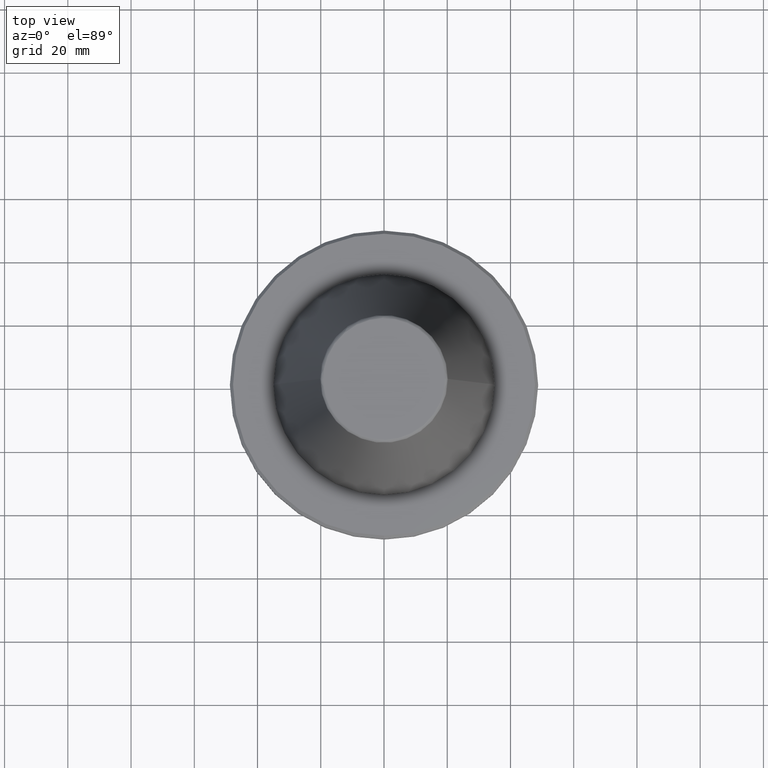
[diagram: clean part render]
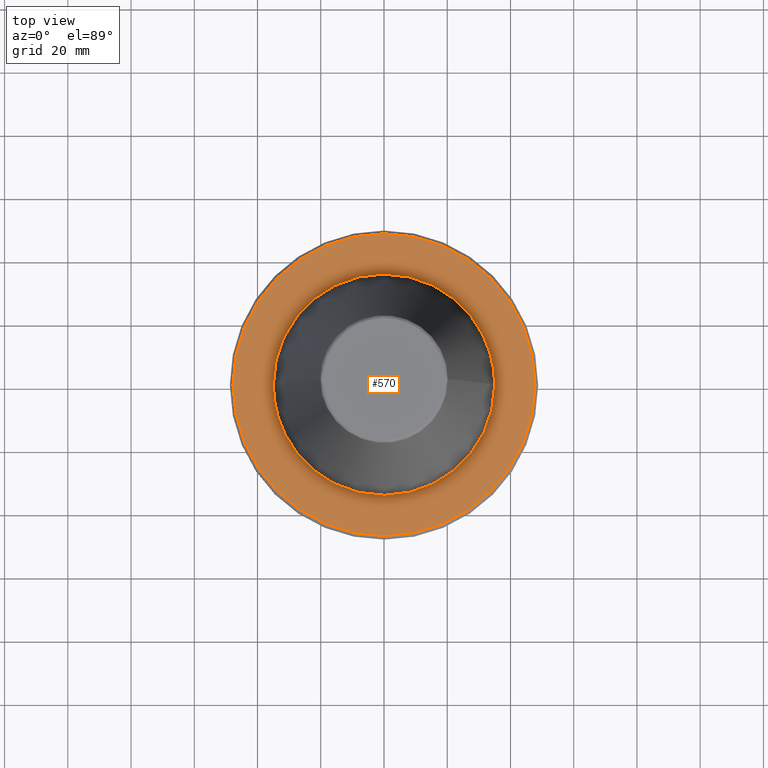
[diagram: same view with one face highlighted and labeled with its STEP entity id]
A machine part, top view. The second image highlights one B-rep face of the part: STEP entity #570.
In plain terms, the highlighted planar face has unit normal (0, 0, 1).
Its self-contained STEP definition (entity closure, byte-faithful):
#3 = CARTESIAN_POINT ( 'NONE',  ( 28.66647813263389100, 20.11141930852688000, -3.200000000000000200 ) ) ;
#5 = CARTESIAN_POINT ( 'NONE',  ( 27.98958627852154600, 21.01388407311553400, -3.200000000000000600 ) ) ;
#8 = VERTEX_POINT ( 'NONE', #1336 ) ;
#12 = CARTESIAN_POINT ( 'NONE',  ( 33.59614902630421800, 9.813201769447523800, -3.199999999999999700 ) ) ;
#17 = CARTESIAN_POINT ( 'NONE',  ( 33.59129832677980700, 9.829794208781134300, -3.199999999999999700 ) ) ;
#26 = CARTESIAN_POINT ( 'NONE',  ( 33.58256794080777000, 9.859577179324158900, -3.199999999999999700 ) ) ;
#29 = FACE_OUTER_BOUND ( 'NONE', #301, .T. ) ;
#82 = CARTESIAN_POINT ( 'NONE',  ( 35.00000001457915700, -4.714166836875845200E-010, -3.200000000159716400 ) ) ;
#103 = CARTESIAN_POINT ( 'NONE',  ( 25.25575879820205600, 24.28597114523919500, -3.199999999999999300 ) ) ;
#116 = EDGE_CURVE ( 'NONE', #8, #532, #1969, .T. ) ;
#174 = CARTESIAN_POINT ( 'NONE',  ( 26.66898804824506900, 22.68137333605901100, -3.200000000000000600 ) ) ;
#175 = CARTESIAN_POINT ( 'NONE',  ( 35.00000001457915700, -4.714166836875845200E-010, -3.200000000159716400 ) ) ;
#199 = CARTESIAN_POINT ( 'NONE',  ( -16.98305849826907700, 30.60435627956730900, -3.199999999999999700 ) ) ;
#205 = CARTESIAN_POINT ( 'NONE',  ( -16.72741284098766100, 30.74420526127586900, -3.200000000000000600 ) ) ;
#215 = CARTESIAN_POINT ( 'NONE',  ( -16.61747146861267400, 30.80359369205227800, -3.199999999999999300 ) ) ;
#224 = CARTESIAN_POINT ( 'NONE',  ( -14.92170881710264400, 31.67324158929991300, -3.200000000000001100 ) ) ;
#228 = CARTESIAN_POINT ( 'NONE',  ( -13.80818875298138500, 32.16438365212884800, -3.200000000000000600 ) ) ;
#232 = CARTESIAN_POINT ( 'NONE',  ( -13.24564494362088100, 32.39762310636216800, -3.200000000000000600 ) ) ;
#237 = CARTESIAN_POINT ( 'NONE',  ( 27.97695454177743500, 21.03069930858151800, -3.199999999999999700 ) ) ;
#242 = CARTESIAN_POINT ( 'NONE',  ( 27.95387467405899100, 21.06136648473431800, -3.200000000000000200 ) ) ;
#246 = CARTESIAN_POINT ( 'NONE',  ( 27.91922046233943200, 21.10733511634894600, -3.199999999999999700 ) ) ;
#250 = CARTESIAN_POINT ( 'NONE',  ( 33.56944364832439500, 9.904240396814492100, -3.199999999999999300 ) ) ;
#258 = CARTESIAN_POINT ( 'NONE',  ( 33.53861930451944300, 10.00837590268925200, -3.200000000000000600 ) ) ;
#267 = ORIENTED_EDGE ( 'NONE', *, *, #1867, .T. ) ;
#270 = CARTESIAN_POINT ( 'NONE',  ( 33.47616663820119200, 10.21633224136127900, -3.200000000000000200 ) ) ;
#284 = FACE_BOUND ( 'NONE', #2106, .T. ) ;
#301 = EDGE_LOOP ( 'NONE', ( #1039, #2283 ) ) ;
#337 = CARTESIAN_POINT ( 'NONE',  ( -4.538759021371412800, 34.70493436193011400, -3.200000000000000200 ) ) ;
#340 = CARTESIAN_POINT ( 'NONE',  ( -2.911717711400345200, 34.90916323405039600, -3.200000000000000200 ) ) ;
#355 = CARTESIAN_POINT ( 'NONE',  ( -1.457603629773957400, 34.99995445979966700, -3.200000000000000600 ) ) ;
#359 = CIRCLE ( 'NONE', #2169, 47.74999999947760200 ) ;
#360 = CARTESIAN_POINT ( 'NONE',  ( -5.611097542874901500, 34.55063404726846000, -3.199999999999999300 ) ) ;
#364 = CARTESIAN_POINT ( 'NONE',  ( -5.074858368932947200, 34.63060707149491400, -3.200000000000000600 ) ) ;
#365 = CARTESIAN_POINT ( 'NONE',  ( -4.716823829139216600, 34.68117633194174200, -3.200000000000000200 ) ) ;
#462 = CARTESIAN_POINT ( 'NONE',  ( -18.49217451733870400, 29.72953504553571200, -3.199999999999999700 ) ) ;
#473 = CARTESIAN_POINT ( 'NONE',  ( -33.62686147456156500, 9.707491022071867100, -3.200000000000000200 ) ) ;
#479 = CARTESIAN_POINT ( 'NONE',  ( -34.69668677982614500, 4.597825275042112900, -3.199999999999999300 ) ) ;
#483 = CARTESIAN_POINT ( 'NONE',  ( -33.61537317847952300, 9.747142637828890300, -3.200000000000000200 ) ) ;
#499 = CARTESIAN_POINT ( 'NONE',  ( -34.00316705575819800, 8.314356070571566400, -3.200000000000001100 ) ) ;
#504 = CARTESIAN_POINT ( 'NONE',  ( -34.69209075520108600, 4.632386335541643700, -3.200000000000000200 ) ) ;
#532 = VERTEX_POINT ( 'NONE', #586 ) ;
#541 = DIRECTION ( 'NONE',  ( 1.000000000000000000, 0.0000000000000000000, -0.0000000000000000000 ) ) ;
#542 = DIRECTION ( 'NONE',  ( 0.0000000000000000000, 0.0000000000000000000, 1.000000000000000000 ) ) ;
#546 = CARTESIAN_POINT ( 'NONE',  ( 16.20110620628685900, 31.02478288358178600, -3.200000000000001100 ) ) ;
#550 = CARTESIAN_POINT ( 'NONE',  ( -17.49081296645779900, 30.31955440989589000, -3.200000000000001100 ) ) ;
#551 = CARTESIAN_POINT ( 'NONE',  ( -46.16167303200001700, -48.15532635000001000, -3.200000000000000200 ) ) ;
#555 = CARTESIAN_POINT ( 'NONE',  ( -20.43830807711447400, 28.46783381674617900, -3.200000000000000600 ) ) ;
#560 = CARTESIAN_POINT ( 'NONE',  ( -16.54409300973474100, 30.84306445765909300, -3.199999999999999700 ) ) ;
#563 = CARTESIAN_POINT ( 'NONE',  ( -16.50897971880017000, 30.86187606313643200, -3.199999999999999700 ) ) ;
#565 = PLANE ( 'NONE',  #1943 ) ;
#569 = CARTESIAN_POINT ( 'NONE',  ( -15.85632449274985900, 31.20998298511112500, -3.200000000000001100 ) ) ;
#570 = ADVANCED_FACE ( 'NONE', ( #284, #29 ), #565, .T. ) ;
#586 = CARTESIAN_POINT ( 'NONE',  ( 5.908920805838778900E-015, -47.74999999947760200, -3.200000000015135200 ) ) ;
#589 = CARTESIAN_POINT ( 'NONE',  ( -33.80868127384608400, 9.058644777609451600, -3.200000000000000600 ) ) ;
#591 = CARTESIAN_POINT ( 'NONE',  ( 3.090145118694149800, 34.86668033919362800, -3.199999999999999700 ) ) ;
#596 = CARTESIAN_POINT ( 'NONE',  ( 1.820150257750152900, 34.96599315447993200, -3.199999999999998800 ) ) ;
#600 = CARTESIAN_POINT ( 'NONE',  ( 0.7288018148857219300, 35.00002276962924700, -3.200000000000000200 ) ) ;
#605 = CARTESIAN_POINT ( 'NONE',  ( 4.178595332948291700, 34.75013135242018300, -3.200000000000001100 ) ) ;
#609 = CARTESIAN_POINT ( 'NONE',  ( 3.995970857128039500, 34.77161411019376700, -3.200000000000001500 ) ) ;
#639 = CARTESIAN_POINT ( 'NONE',  ( -23.07148397386658800, 26.31932566446691300, -3.200000000000000200 ) ) ;
#651 = CARTESIAN_POINT ( 'NONE',  ( 3.633733275727759200, 34.81134379029691700, -3.200000000000001500 ) ) ;
#670 = CARTESIAN_POINT ( 'NONE',  ( 34.99999999919280200, 1.555939077086322600, -3.200000000000000200 ) ) ;
#678 = CARTESIAN_POINT ( 'NONE',  ( -23.21550350583410700, 26.19257232969557200, -3.200000000000001100 ) ) ;
#693 = CARTESIAN_POINT ( 'NONE',  ( 31.40724649605148500, 15.44625640909646300, -3.200000000000000200 ) ) ;
#702 = CARTESIAN_POINT ( 'NONE',  ( 27.34477118616629800, 21.85028360881968700, -3.200000000000000200 ) ) ;
#705 = CARTESIAN_POINT ( 'NONE',  ( 31.44544195950781100, 15.36829252588463200, -3.199999999999999700 ) ) ;
#767 = CARTESIAN_POINT ( 'NONE',  ( -32.18787915579481100, 13.76153362346032000, -3.200000000000000200 ) ) ;
#792 = CARTESIAN_POINT ( 'NONE',  ( 34.89675515627595800, 3.104611643444424200, -3.200000000000000600 ) ) ;
#847 = CARTESIAN_POINT ( 'NONE',  ( -31.46827916834401500, 15.32147753858855100, -3.200000000000000600 ) ) ;
#851 = CARTESIAN_POINT ( 'NONE',  ( 34.68291599222144600, 4.700576656138127700, -3.200000000000000600 ) ) ;
#862 = CARTESIAN_POINT ( 'NONE',  ( -8.787998741514064300, 33.87888359050031500, -3.200000000000000600 ) ) ;
#874 = CARTESIAN_POINT ( 'NONE',  ( 34.16759215236678000, 7.677154024545355800, -3.199999999999999700 ) ) ;
#885 = CARTESIAN_POINT ( 'NONE',  ( 34.45725753590089400, 6.167747524305167600, -3.200000000000000600 ) ) ;
#923 = CARTESIAN_POINT ( 'NONE',  ( 0.0000000000000000000, 0.0000000000000000000, -3.200000000015135200 ) ) ;
#965 = VERTEX_POINT ( 'NONE', #175 ) ;
#980 = CARTESIAN_POINT ( 'NONE',  ( -28.02082767152015600, 20.97220679042652900, -3.199999999999999700 ) ) ;
#983 = CARTESIAN_POINT ( 'NONE',  ( 0.0000000000000000000, 0.0000000000000000000, -3.200000000015135200 ) ) ;
#985 = CARTESIAN_POINT ( 'NONE',  ( -23.11476245996857400, 26.28136674877240600, -3.199999999999999700 ) ) ;
#999 = CARTESIAN_POINT ( 'NONE',  ( 31.89563553010181000, 14.44492032688038400, -3.199999999999999300 ) ) ;
#1017 = CARTESIAN_POINT ( 'NONE',  ( 34.67736237479816500, 4.741486848063151300, -3.199999999999999700 ) ) ;
#1026 = CARTESIAN_POINT ( 'NONE',  ( 34.58084369010262500, 5.408423027313623300, -3.200000000000000200 ) ) ;
#1028 = CARTESIAN_POINT ( 'NONE',  ( 31.35351224677952000, 15.55524535964386100, -3.200000000000000600 ) ) ;
#1029 = CARTESIAN_POINT ( 'NONE',  ( 31.43017691364293500, 15.39948617089788900, -3.200000000000000600 ) ) ;
#1034 = CARTESIAN_POINT ( 'NONE',  ( 34.63732513281221500, 5.027605467099950200, -3.200000000000000200 ) ) ;
#1037 = CARTESIAN_POINT ( 'NONE',  ( 34.66423794556917000, 4.836907859063636300, -3.199999999999999700 ) ) ;
#1039 = ORIENTED_EDGE ( 'NONE', *, *, #116, .T. ) ;
#1042 = DIRECTION ( 'NONE',  ( -0.0000000000000000000, -0.0000000000000000000, 1.000000000000000000 ) ) ;
#1088 = CARTESIAN_POINT ( 'NONE',  ( -33.32210090109176500, 10.75289310494192200, -3.200000000000001500 ) ) ;
#1096 = CARTESIAN_POINT ( 'NONE',  ( -33.60434217263507900, 9.785111045147425900, -3.200000000000000200 ) ) ;
#1099 = CARTESIAN_POINT ( 'NONE',  ( -33.60769847124098000, 9.773573774355071500, -3.200000000000000200 ) ) ;
#1105 = CARTESIAN_POINT ( 'NONE',  ( -28.07278142079753600, 20.90265371867449700, -3.200000000000000200 ) ) ;
#1113 = CARTESIAN_POINT ( 'NONE',  ( 32.48927229057520800, 13.08366675192361900, -3.199999999999999700 ) ) ;
#1145 = CARTESIAN_POINT ( 'NONE',  ( -34.73402354776698800, 4.308594834987244900, -3.199999999999999300 ) ) ;
#1148 = CARTESIAN_POINT ( 'NONE',  ( -34.70146966704310600, 4.561678848799808800, -3.200000000000000200 ) ) ;
#1159 = CARTESIAN_POINT ( 'NONE',  ( 22.95084254657458400, 26.42459400110792000, -3.199999999999999300 ) ) ;
#1178 = CARTESIAN_POINT ( 'NONE',  ( -34.84835913132405200, 3.295246834883931900, -3.200000000000001100 ) ) ;
#1193 = CARTESIAN_POINT ( 'NONE',  ( -23.81317130659878200, 25.65354457312653500, -3.199999999999999700 ) ) ;
#1196 = CARTESIAN_POINT ( 'NONE',  ( 14.28871044245497900, 31.96379925102922600, -3.200000000000000600 ) ) ;
#1199 = CARTESIAN_POINT ( 'NONE',  ( 15.38708407109703200, 31.43964559062843700, -3.200000000000000200 ) ) ;
#1203 = CARTESIAN_POINT ( 'NONE',  ( 15.93069483610850100, 31.16514163943031000, -3.199999999999999700 ) ) ;
#1206 = CARTESIAN_POINT ( 'NONE',  ( -28.14525502587688200, 20.80512064210896700, -3.200000000000000600 ) ) ;
#1215 = CARTESIAN_POINT ( 'NONE',  ( -32.84626084715955600, 12.15969776516778800, -3.200000000000000200 ) ) ;
#1217 = CARTESIAN_POINT ( 'NONE',  ( -35.00000001457916500, 0.0000000000000000000, -3.200000000159716400 ) ) ;
#1225 = CARTESIAN_POINT ( 'NONE',  ( -34.99999999919624800, 0.7776259070824036400, -3.200000000000000200 ) ) ;
#1234 = CARTESIAN_POINT ( 'NONE',  ( -28.04162236336097500, 20.94439356724400300, -3.199999999999999700 ) ) ;
#1258 = CARTESIAN_POINT ( 'NONE',  ( 22.99924530373603900, 26.38247604017392000, -3.199999999999999300 ) ) ;
#1264 = CARTESIAN_POINT ( 'NONE',  ( 16.39369294190075300, 30.92326912311285600, -3.200000000000000200 ) ) ;
#1274 = CARTESIAN_POINT ( 'NONE',  ( -35.00000001457916500, 0.0000000000000000000, -3.200000000159716400 ) ) ;
#1275 = CARTESIAN_POINT ( 'NONE',  ( 13.32812944884330100, 32.37046654509477900, -3.200000000000000600 ) ) ;
#1278 = CARTESIAN_POINT ( 'NONE',  ( -34.99999999919283100, -1.555939076970626100, -3.200000000000000600 ) ) ;
#1282 = CARTESIAN_POINT ( 'NONE',  ( 12.59813476196101700, 32.65416337964779800, -3.200000000000000200 ) ) ;
#1284 = CARTESIAN_POINT ( 'NONE',  ( -34.89675515627598700, -3.104611643328500900, -3.200000000000000200 ) ) ;
#1285 = CARTESIAN_POINT ( 'NONE',  ( 12.51304001883262500, 32.68687048565050900, -3.199999999999999700 ) ) ;
#1286 = CARTESIAN_POINT ( 'NONE',  ( -34.68865228537811900, -4.658059933883998300, -3.200000000000000200 ) ) ;
#1294 = CARTESIAN_POINT ( 'NONE',  ( 12.34653260036650700, 32.75012744593902900, -3.199999999999999700 ) ) ;
#1296 = CARTESIAN_POINT ( 'NONE',  ( -34.68660259540171600, -4.673299756425906000, -3.199999999999999300 ) ) ;
#1298 = CARTESIAN_POINT ( 'NONE',  ( 12.09646931809433000, 32.84404087015170900, -3.200000000000000200 ) ) ;
#1310 = CARTESIAN_POINT ( 'NONE',  ( -34.68291599222219900, -4.700576656136735900, -3.200000000000000600 ) ) ;
#1317 = CARTESIAN_POINT ( 'NONE',  ( -34.67736237479938000, -4.741486848061374100, -3.199999999999998800 ) ) ;
#1321 = CARTESIAN_POINT ( 'NONE',  ( 31.02466838750487100, 16.20521411594917900, -3.199999999999999700 ) ) ;
#1323 = CARTESIAN_POINT ( 'NONE',  ( -34.66423794557141500, -4.836907859061071200, -3.200000000000000200 ) ) ;
#1329 = CARTESIAN_POINT ( 'NONE',  ( -34.63732513281640700, -5.027605467095778400, -3.200000000000000600 ) ) ;
#1336 = CARTESIAN_POINT ( 'NONE',  ( 0.0000000000000000000, 47.74999999947760200, -3.200000000015135200 ) ) ;
#1337 = EDGE_CURVE ( 'NONE', #532, #8, #359, .T. ) ;
#1345 = CARTESIAN_POINT ( 'NONE',  ( -34.58084369011034200, -5.408423027306556100, -3.200000000000000600 ) ) ;
#1356 = CARTESIAN_POINT ( 'NONE',  ( -34.45725753591396800, -6.167747524293744700, -3.199999999999999700 ) ) ;
#1362 = CARTESIAN_POINT ( 'NONE',  ( -34.16759215238426600, -7.677154024530280700, -3.199999999999999700 ) ) ;
#1369 = CARTESIAN_POINT ( 'NONE',  ( -33.84646226626682600, -8.955086749754022100, -3.199999999999999300 ) ) ;
#1379 = CARTESIAN_POINT ( 'NONE',  ( -33.59614902630451600, -9.813201769446230600, -3.200000000000000600 ) ) ;
#1393 = CARTESIAN_POINT ( 'NONE',  ( -33.59129832678067400, -9.829794208777441300, -3.200000000000000600 ) ) ;
#1396 = CARTESIAN_POINT ( 'NONE',  ( -33.58256794080903500, -9.859577179318206300, -3.200000000000000200 ) ) ;
#1398 = CARTESIAN_POINT ( 'NONE',  ( -33.56944364832624900, -9.904240396805164400, -3.200000000000000600 ) ) ;
#1402 = CARTESIAN_POINT ( 'NONE',  ( -33.53861930452264800, -10.00837590267228800, -3.199999999999999700 ) ) ;
#1403 = CARTESIAN_POINT ( 'NONE',  ( -33.47616663820696900, -10.21633224132977000, -3.200000000000000600 ) ) ;
#1408 = CARTESIAN_POINT ( 'NONE',  ( -30.17632856920620900, 17.79226847176075700, -3.200000000000000200 ) ) ;
#1412 = CARTESIAN_POINT ( 'NONE',  ( -33.34804539074161100, -10.63098622633786100, -3.199999999999999700 ) ) ;
#1415 = CARTESIAN_POINT ( 'NONE',  ( -28.28927878694489500, 20.60949410269800100, -3.200000000000000600 ) ) ;
#1417 = CARTESIAN_POINT ( 'NONE',  ( -33.07893923647505100, -11.45525942712653500, -3.200000000000000200 ) ) ;
#1419 = CARTESIAN_POINT ( 'NONE',  ( -32.48927229059844300, -13.08366675179380700, -3.200000000000000200 ) ) ;
#1426 = CARTESIAN_POINT ( 'NONE',  ( -31.83287956966818300, 14.55259249128049100, -3.200000000000000200 ) ) ;
#1427 = CARTESIAN_POINT ( 'NONE',  ( -31.89563553011536700, -14.44492032680566100, -3.199999999999999300 ) ) ;
#1430 = CARTESIAN_POINT ( 'NONE',  ( -31.45387788511774800, -15.35101862537288400, -3.200000000000000600 ) ) ;
#1434 = CARTESIAN_POINT ( 'NONE',  ( -31.44544195951171900, -15.36829252587828500, -3.199999999999999300 ) ) ;
#1441 = CARTESIAN_POINT ( 'NONE',  ( -31.43017691365006900, -15.39948617088654000, -3.200000000000001500 ) ) ;
#1451 = CARTESIAN_POINT ( 'NONE',  ( -31.40724649606344000, -15.44625640907765500, -3.199999999999999700 ) ) ;
#1458 = CARTESIAN_POINT ( 'NONE',  ( -31.35351224680239200, -15.55524535960808300, -3.199999999999999700 ) ) ;
#1462 = CARTESIAN_POINT ( 'NONE',  ( -12.01550564275037500, 32.88063587405372300, -3.200000000000000200 ) ) ;
#1468 = CARTESIAN_POINT ( 'NONE',  ( 11.51087324411486900, 33.05636807977433000, -3.200000000000000200 ) ) ;
#1470 = CARTESIAN_POINT ( 'NONE',  ( -31.24512398204455400, -15.77265683967360500, -3.200000000000000200 ) ) ;
#1472 = CARTESIAN_POINT ( 'NONE',  ( -31.02466838758593300, -16.20521411582324600, -3.200000000000000200 ) ) ;
#1479 = CARTESIAN_POINT ( 'NONE',  ( -30.56904093889686900, -17.06126593219696700, -3.200000000000000200 ) ) ;
#1482 = CARTESIAN_POINT ( 'NONE',  ( -28.57363251271833700, 20.21599947875667200, -3.200000000000000600 ) ) ;
#1486 = CARTESIAN_POINT ( 'NONE',  ( -29.59892100243135700, -18.73711862124215300, -3.199999999999999700 ) ) ;
#1488 = EDGE_CURVE ( 'NONE', #1724, #965, #1662, .T. ) ;
#1495 = CARTESIAN_POINT ( 'NONE',  ( -28.01150957290155900, 20.98465299006931400, -3.199999999999998800 ) ) ;
#1502 = CARTESIAN_POINT ( 'NONE',  ( -28.66647813273979400, -20.11141930836271600, -3.199999999999998800 ) ) ;
#1507 = CARTESIAN_POINT ( 'NONE',  ( -27.98958627852092100, -21.01388407311669900, -3.199999999999999700 ) ) ;
#1510 = CARTESIAN_POINT ( 'NONE',  ( -27.97695454177845800, -21.03069930858093500, -3.199999999999999700 ) ) ;
#1515 = CARTESIAN_POINT ( 'NONE',  ( -27.95387467406001000, -21.06136648473450300, -3.199999999999999700 ) ) ;
#1517 = CARTESIAN_POINT ( 'NONE',  ( -22.00941191351758500, 27.24638276337939400, -3.200000000000000600 ) ) ;
#1519 = CARTESIAN_POINT ( 'NONE',  ( -27.91922046234047600, -21.10733511635028500, -3.200000000000001500 ) ) ;
#1523 = CARTESIAN_POINT ( 'NONE',  ( -27.83811976400191700, -21.21437032848509600, -3.200000000000000200 ) ) ;
#1529 = CARTESIAN_POINT ( 'NONE',  ( -27.67495488335292100, -21.42754103954665700, -3.200000000000000200 ) ) ;
#1536 = CARTESIAN_POINT ( 'NONE',  ( -27.34477118616739200, -21.85028360883762800, -3.199999999999999700 ) ) ;
#1539 = CARTESIAN_POINT ( 'NONE',  ( -26.66898804824618500, -22.68137333609079300, -3.199999999999999300 ) ) ;
#1545 = CARTESIAN_POINT ( 'NONE',  ( 22.12507660766439700, 27.12350989693608800, -3.200000000000000200 ) ) ;
#1548 = CARTESIAN_POINT ( 'NONE',  ( -25.25575879820318900, -24.28597114528218300, -3.200000000000000600 ) ) ;
#1557 = CARTESIAN_POINT ( 'NONE',  ( -29.12756477881482200, 19.42004405039564900, -3.200000000000000200 ) ) ;
#1560 = CARTESIAN_POINT ( 'NONE',  ( -23.93871148525096300, -25.56262930404916700, -3.199999999999999700 ) ) ;
#1565 = CARTESIAN_POINT ( 'NONE',  ( -22.99924530373668600, -26.38247604017298900, -3.199999999999999700 ) ) ;
#1572 = CARTESIAN_POINT ( 'NONE',  ( -22.98228627245852700, -26.39725136493169800, -3.199999999999999300 ) ) ;
#1576 = CARTESIAN_POINT ( 'NONE',  ( -22.95084254657180600, -26.42459400110869100, -3.200000000000000200 ) ) ;
#1580 = CARTESIAN_POINT ( 'NONE',  ( -22.90364558900259000, -26.46556224008282500, -3.200000000000000200 ) ) ;
#1583 = CARTESIAN_POINT ( 'NONE',  ( -12.84148688421819400, 32.55923136386024900, -3.200000000000000600 ) ) ;
#1588 = CARTESIAN_POINT ( 'NONE',  ( -22.79329977350066000, -26.56083479064987400, -3.200000000000000200 ) ) ;
#1592 = CARTESIAN_POINT ( 'NONE',  ( -22.57172981780155000, -26.75009986362675500, -3.200000000000000200 ) ) ;
#1595 = CARTESIAN_POINT ( 'NONE',  ( -22.12507660762251800, -27.12350989695175900, -3.200000000000000200 ) ) ;
#1600 = CARTESIAN_POINT ( 'NONE',  ( -21.21771699214103900, -27.84984951308665700, -3.199999999999999700 ) ) ;
#1603 = CARTESIAN_POINT ( 'NONE',  ( -19.34678498068461700, -29.22060694329608000, -3.199999999999999300 ) ) ;
#1604 = CARTESIAN_POINT ( 'NONE',  ( -17.64676420430453200, -30.25510450851492200, -3.199999999999999700 ) ) ;
#1612 = CARTESIAN_POINT ( 'NONE',  ( -16.43383273586973200, -30.90195445441259300, -3.200000000000000200 ) ) ;
#1617 = CARTESIAN_POINT ( 'NONE',  ( -7.914484736240623900, 34.10110593671536300, -3.200000000000000200 ) ) ;
#1622 = CARTESIAN_POINT ( 'NONE',  ( -12.76221273772422300, 32.59039221352732300, -3.200000000000000200 ) ) ;
#1624 = CARTESIAN_POINT ( 'NONE',  ( -16.39369294191073200, -30.92326912310808500, -3.199999999999999300 ) ) ;
#1632 = CARTESIAN_POINT ( 'NONE',  ( -13.00331535875926100, 32.49494039163761300, -3.200000000000000600 ) ) ;
#1638 = CARTESIAN_POINT ( 'NONE',  ( -16.31669807659868400, -30.96396339244091000, -3.200000000000000200 ) ) ;
#1646 = CARTESIAN_POINT ( 'NONE',  ( -6.856633831832297700, 34.33519638917997000, -3.200000000000000200 ) ) ;
#1651 = CARTESIAN_POINT ( 'NONE',  ( -23.41601724407538400, 26.01408902838366200, -3.200000000000000600 ) ) ;
#1662 = B_SPLINE_CURVE_WITH_KNOTS ( 'NONE', 3,
 ( #1217, #1225, #2469, #1178, #2434, #1145, #2370, #1148, #479, #2319, #504, #2357, #2237, #499, #589, #2301, #2274, #473, #483, #1099, #1096, #1088, #1215, #767, #1426, #1707, #1736, #1725, #1721, #1716, #847, #1712, #1408, #1557, #1482, #1415, #1206, #1105, #1234, #980, #1495, #1939, #1905, #1668, #1193, #1651, #678, #985, #639, #2416, #2451, #1517, #555, #462, #550, #199, #205, #215, #560, #563, #569, #224, #228, #232, #1632, #1583, #1622, #1462, #1772, #1805, #1916, #1941, #862, #1762, #1617, #1646, #360, #364, #365, #337, #340, #355, #600, #596, #591, #651, #609, #605, #2444, #2426, #2428, #2436, #2438, #2442, #2464, #2259, #1765, #1468, #1298, #1294, #1285, #1282, #1275, #1196, #1199, #1203, #546, #2403, #1264, #2239, #2431, #2365, #1836, #1545, #2332, #2330, #2348, #1159, #2336, #1258, #2317, #103, #174, #702, #2422, #2328, #246, #242, #237, #5, #3, #1825, #2085, #1321, #2043, #1028, #693, #1029, #705, #2125, #999, #1113, #2234, #2321, #270, #258, #250, #26, #17, #12, #2165, #874, #885, #1026, #1034, #1037, #1017, #851, #2113, #1982, #792, #670, #82 ),
 .UNSPECIFIED., .F., .F.,
 ( 4, 1, 1, 1, 1, 1, 1, 2, 2, 1, 1, 1, 1, 1, 1, 2, 2, 1, 1, 1, 1, 1, 1, 2, 2, 1, 1, 1, 1, 1, 1, 2, 2, 1, 1, 1, 1, 1, 1, 2, 2, 1, 1, 1, 1, 1, 2, 2, 1, 1, 1, 2, 2, 1, 1, 1, 2, 2, 1, 1, 2, 2, 2, 1, 1, 2, 2, 1, 1, 1, 2, 2, 1, 1, 1, 2, 2, 1, 1, 1, 1, 2, 2, 1, 1, 1, 1, 1, 1, 2, 2, 1, 1, 1, 1, 1, 1, 2, 2, 1, 1, 1, 1, 1, 1, 2, 2, 1, 1, 1, 1, 1, 1, 2, 2, 1, 1, 1, 1, 1, 1, 2, 2, 4 ),
 ( 0.0000000000000000000, 0.03124999999999938200, 0.04687499999999907000, 0.05468749999999891100, 0.05859374999999884100, 0.06054687499999880700, 0.06152343749999877200, 0.06201171874999875100, 0.06249999999999873700, 0.09374999999999889000, 0.1093749999999989900, 0.1171874999999990700, 0.1210937499999991100, 0.1230468749999992000, 0.1240234374999992000, 0.1245117187499992400, 0.1249999999999992800, 0.1562500000000030800, 0.1718750000000049700, 0.1796875000000059100, 0.1835937500000064100, 0.1855468750000066600, 0.1865234375000068000, 0.1870117187500069100, 0.1875000000000069900, 0.2187500000000116600, 0.2343750000000139600, 0.2421875000000150400, 0.2460937500000155400, 0.2480468750000157900, 0.2490234375000159600, 0.2495117187500159600, 0.2500000000000159900, 0.2812500000000164300, 0.2968750000000166500, 0.3046875000000168200, 0.3085937500000168200, 0.3105468750000168200, 0.3115234375000168800, 0.3120117187500169300, 0.3125000000000169900, 0.3437500000000189800, 0.3593750000000199300, 0.3671875000000203700, 0.3710937500000205900, 0.3730468750000207100, 0.3740234375000207600, 0.3750000000000207600, 0.3906250000000213700, 0.3984375000000216500, 0.4023437500000217600, 0.4042968750000218200, 0.4062500000000218700, 0.4218750000000223700, 0.4296875000000225900, 0.4335937500000227600, 0.4355468750000228200, 0.4375000000000228700, 0.4531250000000234300, 0.4609375000000236500, 0.4648437500000238100, 0.4687500000000239300, 0.5000000000000250900, 0.5156250000000256500, 0.5234375000000259800, 0.5273437500000260900, 0.5312500000000262000, 0.5468750000000268700, 0.5546875000000270900, 0.5585937500000273100, 0.5605468750000273100, 0.5625000000000274200, 0.5781250000000280900, 0.5859375000000284200, 0.5898437500000285300, 0.5917968750000286400, 0.5937500000000286400, 0.6093750000000290900, 0.6171875000000292000, 0.6210937500000293100, 0.6230468750000294200, 0.6240234375000295300, 0.6250000000000296400, 0.6562500000000319700, 0.6718750000000330800, 0.6796875000000337500, 0.6835937500000339700, 0.6855468750000341900, 0.6865234375000343100, 0.6870117187500343100, 0.6875000000000343100, 0.7187500000000333100, 0.7343750000000328600, 0.7421875000000327500, 0.7460937500000326400, 0.7480468750000326400, 0.7490234375000326400, 0.7495117187500326400, 0.7500000000000325300, 0.7812500000000299800, 0.7968750000000286400, 0.8046875000000280900, 0.8085937500000277600, 0.8105468750000275300, 0.8115234375000274200, 0.8120117187500273100, 0.8125000000000273100, 0.8437500000000210900, 0.8593750000000179900, 0.8671875000000164300, 0.8710937500000155400, 0.8730468750000152100, 0.8740234375000149900, 0.8745117187500149900, 0.8750000000000149900, 0.9062500000000109900, 0.9218750000000088800, 0.9296875000000078800, 0.9335937500000073300, 0.9355468750000069900, 0.9365234375000068800, 0.9370117187500067700, 0.9375000000000066600, 1.000000000000000000 ),
 .UNSPECIFIED. ) ;
#1668 = CARTESIAN_POINT ( 'NONE',  ( -24.59198577580899700, 24.91814425207925500, -3.200000000000000600 ) ) ;
#1670 = CARTESIAN_POINT ( 'NONE',  ( -16.20110620632101500, -31.02478288356540400, -3.200000000000001500 ) ) ;
#1674 = CARTESIAN_POINT ( 'NONE',  ( -15.93069483617261300, -31.16514163939950400, -3.199999999999999700 ) ) ;
#1682 = CARTESIAN_POINT ( 'NONE',  ( -15.38708407120720700, -31.43964559057551300, -3.200000000000000600 ) ) ;
#1684 = CARTESIAN_POINT ( 'NONE',  ( -14.28871044260196200, -31.96379925095858700, -3.200000000000000600 ) ) ;
#1694 = CARTESIAN_POINT ( 'NONE',  ( -13.32812944892704400, -32.37046654505449800, -3.200000000000000200 ) ) ;
#1698 = CARTESIAN_POINT ( 'NONE',  ( -12.59813476194992400, -32.65416337965304900, -3.199999999999999700 ) ) ;
#1703 = CARTESIAN_POINT ( 'NONE',  ( -12.51304001884523500, -32.68687048564749600, -3.200000000000000200 ) ) ;
#1707 = CARTESIAN_POINT ( 'NONE',  ( -31.64892759149375600, 14.94565715985906500, -3.199999999999998800 ) ) ;
#1712 = CARTESIAN_POINT ( 'NONE',  ( -30.97395340359611300, 16.33554988108016900, -3.199999999999999700 ) ) ;
#1716 = CARTESIAN_POINT ( 'NONE',  ( -31.47426485249026100, 15.30917499065531500, -3.200000000000000600 ) ) ;
#1721 = CARTESIAN_POINT ( 'NONE',  ( -31.48782674400403500, 15.28126032634402900, -3.200000000000000200 ) ) ;
#1722 = CARTESIAN_POINT ( 'NONE',  ( -12.34653260039102400, -32.75012744593311000, -3.199999999999999700 ) ) ;
#1724 = VERTEX_POINT ( 'NONE', #1876 ) ;
#1725 = CARTESIAN_POINT ( 'NONE',  ( -31.50814077687688600, 15.23937732646045600, -3.200000000000000200 ) ) ;
#1732 = CARTESIAN_POINT ( 'NONE',  ( -12.09646931813542500, -32.84404087014180400, -3.200000000000000600 ) ) ;
#1736 = CARTESIAN_POINT ( 'NONE',  ( -31.55533855612879900, 15.14157330281547700, -3.200000000000000600 ) ) ;
#1737 = CARTESIAN_POINT ( 'NONE',  ( -11.51087324418572800, -33.05636807975715600, -3.200000000000000200 ) ) ;
#1739 = B_SPLINE_CURVE_WITH_KNOTS ( 'NONE', 3,
 ( #2371, #2303, #2300, #2295, #2293, #2287, #2285, #2280, #2275, #2273, #2270, #2263, #2260, #2254, #2252, #2249, #2245, #2241, #2236, #2225, #2220, #2215, #2210, #2201, #2195, #2182, #2180, #2178, #2162, #2157, #2153, #2148, #2145, #2136, #2129, #2122, #2119, #2110, #2103, #2094, #2088, #2083, #2073, #2072, #2069, #2063, #2044, #2039, #2033, #2031, #2026, #2022, #2015, #2009, #2006, #2003, #1989, #1987, #1985, #1983, #1980, #1976, #1975, #1971, #1966, #1961, #1956, #1952, #1938, #1927, #1920, #1918, #1915, #1913, #1906, #1902, #1892, #1881, #1879, #1872, #1861, #1855, #1844, #1839, #1834, #1829, #1827, #1822, #1780, #1777, #1774, #1770, #1766, #1760, #1756, #1753, #1746, #1737, #1732, #1722, #1703, #1698, #1694, #1684, #1682, #1674, #1670, #1638, #1624, #1612, #1604, #1603, #1600, #1595, #1592, #1588, #1580, #1576, #1572, #1565, #1560, #1548, #1539, #1536, #1529, #1523, #1519, #1515, #1510, #1507, #1502, #1486, #1479, #1472, #1470, #1458, #1451, #1441, #1434, #1430, #1427, #1419, #1417, #1412, #1403, #1402, #1398, #1396, #1393, #1379, #1369, #1362, #1356, #1345, #1329, #1323, #1317, #1310, #1296, #1286, #1284, #1278, #1274 ),
 .UNSPECIFIED., .F., .F.,
 ( 4, 1, 1, 1, 1, 1, 1, 2, 2, 1, 1, 1, 1, 1, 1, 2, 2, 1, 1, 1, 1, 1, 1, 2, 2, 1, 1, 1, 1, 1, 1, 2, 2, 1, 1, 1, 1, 1, 1, 2, 2, 1, 1, 1, 1, 1, 2, 2, 1, 1, 1, 2, 2, 1, 1, 1, 2, 2, 1, 1, 2, 2, 2, 1, 1, 2, 2, 1, 1, 1, 2, 2, 1, 1, 1, 2, 2, 1, 1, 1, 1, 2, 2, 1, 1, 1, 1, 1, 1, 2, 2, 1, 1, 1, 1, 1, 1, 2, 2, 1, 1, 1, 1, 1, 1, 2, 2, 1, 1, 1, 1, 1, 1, 2, 2, 1, 1, 1, 1, 1, 1, 2, 2, 4 ),
 ( 0.0000000000000000000, 0.03125000000000550900, 0.04687500000000826400, 0.05468750000000964500, 0.05859375000001036000, 0.06054687500001071400, 0.06152343750001089400, 0.06201171875001098400, 0.06250000000001107400, 0.09375000000001772200, 0.1093750000000210400, 0.1171875000000226900, 0.1210937500000234500, 0.1230468750000238700, 0.1240234375000241200, 0.1245117187500242000, 0.1250000000000242900, 0.1562500000000299800, 0.1718750000000328100, 0.1796875000000342800, 0.1835937500000350000, 0.1855468750000353600, 0.1865234375000354700, 0.1870117187500355300, 0.1875000000000355800, 0.2187500000000367800, 0.2343750000000374100, 0.2421875000000376600, 0.2460937500000378900, 0.2480468750000380000, 0.2490234375000380800, 0.2495117187500380800, 0.2500000000000380800, 0.2812500000000354700, 0.2968750000000341900, 0.3046875000000335800, 0.3085937500000333100, 0.3105468750000331400, 0.3115234375000330800, 0.3120117187500330800, 0.3125000000000330300, 0.3437500000000334200, 0.3593750000000335800, 0.3671875000000337000, 0.3710937500000337500, 0.3730468750000337500, 0.3740234375000338100, 0.3750000000000338600, 0.3906250000000342500, 0.3984375000000343600, 0.4023437500000344700, 0.4042968750000344700, 0.4062500000000344700, 0.4218750000000341400, 0.4296875000000340300, 0.4335937500000339700, 0.4355468750000339700, 0.4375000000000339700, 0.4531250000000338600, 0.4609375000000338100, 0.4648437500000337500, 0.4687500000000337500, 0.5000000000000335300, 0.5156250000000334200, 0.5234375000000333100, 0.5273437500000333100, 0.5312500000000334200, 0.5468750000000332000, 0.5546875000000332000, 0.5585937500000332000, 0.5605468750000332000, 0.5625000000000332000, 0.5781250000000329700, 0.5859375000000327500, 0.5898437500000328600, 0.5917968750000328600, 0.5937500000000328600, 0.6093750000000330800, 0.6171875000000332000, 0.6210937500000332000, 0.6230468750000333100, 0.6240234375000334200, 0.6250000000000334200, 0.6562500000000354200, 0.6718750000000364200, 0.6796875000000368600, 0.6835937500000371900, 0.6855468750000373000, 0.6865234375000373000, 0.6870117187500373000, 0.6875000000000373000, 0.7187500000000353100, 0.7343750000000343100, 0.7421875000000338600, 0.7460937500000335300, 0.7480468750000334200, 0.7490234375000333100, 0.7495117187500333100, 0.7500000000000333100, 0.7812500000000267600, 0.7968750000000233100, 0.8046875000000217600, 0.8085937500000208700, 0.8105468750000205400, 0.8115234375000204300, 0.8120117187500203200, 0.8125000000000203200, 0.8437500000000174300, 0.8593750000000159900, 0.8671875000000152100, 0.8710937500000147700, 0.8730468750000145400, 0.8740234375000144300, 0.8745117187500144300, 0.8750000000000143200, 0.9062500000000104400, 0.9218750000000084400, 0.9296875000000074400, 0.9335937500000069900, 0.9355468750000067700, 0.9365234375000065500, 0.9370117187500065500, 0.9375000000000065500, 1.000000000000000000 ),
 .UNSPECIFIED. ) ;
#1746 = CARTESIAN_POINT ( 'NONE',  ( -10.33122076820632500, -33.45380604483485600, -3.200000000000001100 ) ) ;
#1753 = CARTESIAN_POINT ( 'NONE',  ( -9.305586654944070400, -33.74781037921061300, -3.199999999999999700 ) ) ;
#1756 = CARTESIAN_POINT ( 'NONE',  ( -8.529109360214553300, -33.94498524071843100, -3.199999999999999700 ) ) ;
#1760 = CARTESIAN_POINT ( 'NONE',  ( -8.439919772693571100, -33.96727351124455700, -3.200000000000000200 ) ) ;
#1762 = CARTESIAN_POINT ( 'NONE',  ( -8.702997100055021900, 33.90082329602969200, -3.200000000000000600 ) ) ;
#1765 = CARTESIAN_POINT ( 'NONE',  ( 10.33122076811166900, 33.45380604485784900, -3.199999999999998800 ) ) ;
#1766 = CARTESIAN_POINT ( 'NONE',  ( -8.264268431243747800, -34.01043716186414700, -3.199999999999999700 ) ) ;
#1770 = CARTESIAN_POINT ( 'NONE',  ( -8.000604920110106400, -34.07414969994169200, -3.200000000000000200 ) ) ;
#1772 = CARTESIAN_POINT ( 'NONE',  ( -11.00971832932525800, 33.23668607444189900, -3.200000000000000600 ) ) ;
#1774 = CARTESIAN_POINT ( 'NONE',  ( -7.384084568085961900, -34.21558172382651700, -3.200000000000000600 ) ) ;
#1777 = CARTESIAN_POINT ( 'NONE',  ( -6.145821893188388800, -34.46952351174478900, -3.200000000000001100 ) ) ;
#1780 = CARTESIAN_POINT ( 'NONE',  ( -5.075501936106000800, -34.63760688450099000, -3.200000000000001100 ) ) ;
#1783 = DIRECTION ( 'NONE',  ( 1.000000000000000000, 0.0000000000000000000, 0.0000000000000000000 ) ) ;
#1805 = CARTESIAN_POINT ( 'NONE',  ( -9.818488553440985800, 33.59793061767909000, -3.199999999999999700 ) ) ;
#1822 = CARTESIAN_POINT ( 'NONE',  ( -4.178595332966623700, -34.75013135241561500, -3.200000000000000600 ) ) ;
#1825 = CARTESIAN_POINT ( 'NONE',  ( 29.59892100224684700, 18.73711862152837400, -3.199999999999999700 ) ) ;
#1827 = CARTESIAN_POINT ( 'NONE',  ( -3.995970857144906900, -34.77161411018731500, -3.200000000000000600 ) ) ;
#1829 = CARTESIAN_POINT ( 'NONE',  ( -3.633733275758639400, -34.81134379028525700, -3.200000000000000200 ) ) ;
#1834 = CARTESIAN_POINT ( 'NONE',  ( -3.090145118742561300, -34.86668033917544600, -3.200000000000000600 ) ) ;
#1836 = CARTESIAN_POINT ( 'NONE',  ( 21.21771699221341100, 27.84984951305934700, -3.200000000000000200 ) ) ;
#1839 = CARTESIAN_POINT ( 'NONE',  ( -1.820150257814907100, -34.96599315445563900, -3.200000000000001500 ) ) ;
#1844 = CARTESIAN_POINT ( 'NONE',  ( -0.7288018149224331200, -35.00002276961533500, -3.199999999999999700 ) ) ;
#1855 = CARTESIAN_POINT ( 'NONE',  ( 1.457603629849412400, -34.99995445982746400, -3.200000000000000200 ) ) ;
#1861 = CARTESIAN_POINT ( 'NONE',  ( 2.911717711225712400, -34.90916323407821400, -3.199999999999999300 ) ) ;
#1867 = EDGE_CURVE ( 'NONE', #965, #1724, #1739, .T. ) ;
#1872 = CARTESIAN_POINT ( 'NONE',  ( 4.538759021393969000, -34.70493436192656100, -3.200000000000001100 ) ) ;
#1876 = CARTESIAN_POINT ( 'NONE',  ( -35.00000001457916500, 0.0000000000000000000, -3.200000000159716400 ) ) ;
#1879 = CARTESIAN_POINT ( 'NONE',  ( 4.716823829187805300, -34.68117633193428200, -3.199999999999999700 ) ) ;
#1881 = CARTESIAN_POINT ( 'NONE',  ( 5.074858369019894500, -34.63060707148154900, -3.200000000000001100 ) ) ;
#1892 = CARTESIAN_POINT ( 'NONE',  ( 5.611097543009791800, -34.55063404724770500, -3.200000000000001100 ) ) ;
#1902 = CARTESIAN_POINT ( 'NONE',  ( 6.856633832011931800, -34.33519638915227300, -3.200000000000000600 ) ) ;
#1905 = CARTESIAN_POINT ( 'NONE',  ( -26.08764009088310600, 23.39009796785277100, -3.200000000000000600 ) ) ;
#1906 = CARTESIAN_POINT ( 'NONE',  ( 7.914484736343549500, -34.10110593669947600, -3.199999999999999700 ) ) ;
#1913 = CARTESIAN_POINT ( 'NONE',  ( 8.702997100042871600, -33.90082329603151100, -3.200000000000000200 ) ) ;
#1915 = CARTESIAN_POINT ( 'NONE',  ( 8.787998741512822700, -33.87888359049819100, -3.199999999999999700 ) ) ;
#1916 = CARTESIAN_POINT ( 'NONE',  ( -9.218420854610130300, 33.76501604999376800, -3.200000000000000200 ) ) ;
#1918 = CARTESIAN_POINT ( 'NONE',  ( 8.960294809917815700, -33.83372334113105500, -3.200000000000000600 ) ) ;
#1920 = CARTESIAN_POINT ( 'NONE',  ( 9.218420854604845600, -33.76501604998740900, -3.200000000000000200 ) ) ;
#1927 = CARTESIAN_POINT ( 'NONE',  ( 9.818488553431510700, -33.59793061766826100, -3.200000000000001500 ) ) ;
#1938 = CARTESIAN_POINT ( 'NONE',  ( 11.00971832931243600, -33.23668607442746700, -3.200000000000001100 ) ) ;
#1939 = CARTESIAN_POINT ( 'NONE',  ( -27.26338729235292400, 21.98220862343232800, -3.200000000000000200 ) ) ;
#1941 = CARTESIAN_POINT ( 'NONE',  ( -8.960294809920739600, 33.83372334113494900, -3.200000000000000200 ) ) ;
#1943 = AXIS2_PLACEMENT_3D ( 'NONE', #551, #542, #541 ) ;
#1952 = CARTESIAN_POINT ( 'NONE',  ( 12.01550564274337800, -32.88063587404531800, -3.199999999999999700 ) ) ;
#1956 = CARTESIAN_POINT ( 'NONE',  ( 12.76221273772593900, -32.59039221352801300, -3.200000000000000200 ) ) ;
#1961 = CARTESIAN_POINT ( 'NONE',  ( 12.84148688419140800, -32.55923136387326600, -3.200000000000001100 ) ) ;
#1966 = CARTESIAN_POINT ( 'NONE',  ( 13.00331535870761200, -32.49494039166268100, -3.200000000000000200 ) ) ;
#1969 = CIRCLE ( 'NONE', #2433, 47.74999999947760200 ) ;
#1971 = CARTESIAN_POINT ( 'NONE',  ( 13.24564494353459000, -32.39762310640399100, -3.199999999999999300 ) ) ;
#1975 = CARTESIAN_POINT ( 'NONE',  ( 13.80818875283291900, -32.16438365220079700, -3.200000000000000600 ) ) ;
#1976 = CARTESIAN_POINT ( 'NONE',  ( 14.92170881690441900, -31.67324158939589700, -3.200000000000000600 ) ) ;
#1980 = CARTESIAN_POINT ( 'NONE',  ( 15.85632449263687400, -31.20998298516581200, -3.200000000000000200 ) ) ;
#1982 = CARTESIAN_POINT ( 'NONE',  ( 34.68865228537797000, 4.658059933883985900, -3.200000000000000200 ) ) ;
#1983 = CARTESIAN_POINT ( 'NONE',  ( 16.50897971880794300, -30.86187606313264800, -3.200000000000000200 ) ) ;
#1985 = CARTESIAN_POINT ( 'NONE',  ( 16.54409300973074400, -30.84306445766188500, -3.200000000000000600 ) ) ;
#1987 = CARTESIAN_POINT ( 'NONE',  ( 16.61747146860414000, -30.80359369205815400, -3.199999999999999700 ) ) ;
#1989 = CARTESIAN_POINT ( 'NONE',  ( 16.72741284097241300, -30.74420526128627500, -3.199999999999999300 ) ) ;
#2003 = CARTESIAN_POINT ( 'NONE',  ( 16.98305849823894700, -30.60435627958778000, -3.200000000000000600 ) ) ;
#2006 = CARTESIAN_POINT ( 'NONE',  ( 17.49081296640094900, -30.31955440993436900, -3.200000000000000600 ) ) ;
#2009 = CARTESIAN_POINT ( 'NONE',  ( 18.49217451724078000, -29.72953504560192800, -3.200000000000001500 ) ) ;
#2015 = CARTESIAN_POINT ( 'NONE',  ( 20.43830807698369200, -28.46783381683456300, -3.200000000000001100 ) ) ;
#2022 = CARTESIAN_POINT ( 'NONE',  ( 22.00941191344310600, -27.24638276342965800, -3.200000000000000600 ) ) ;
#2026 = CARTESIAN_POINT ( 'NONE',  ( 23.02939060954713600, -26.35616739236934300, -3.200000000000000200 ) ) ;
#2031 = CARTESIAN_POINT ( 'NONE',  ( 23.04260859375908400, -26.34461031152536800, -3.200000000000000200 ) ) ;
#2033 = CARTESIAN_POINT ( 'NONE',  ( 23.07148397385795500, -26.31932566447531800, -3.200000000000000200 ) ) ;
#2039 = CARTESIAN_POINT ( 'NONE',  ( 23.11476245995312300, -26.28136674878737400, -3.200000000000000200 ) ) ;
#2043 = CARTESIAN_POINT ( 'NONE',  ( 31.24512398200086600, 15.77265683974166400, -3.200000000000001100 ) ) ;
#2044 = CARTESIAN_POINT ( 'NONE',  ( 23.21550350580305300, -26.19257232972556400, -3.200000000000000200 ) ) ;
#2063 = CARTESIAN_POINT ( 'NONE',  ( 23.41601724401475700, -26.01408902844216800, -3.200000000000000600 ) ) ;
#2069 = CARTESIAN_POINT ( 'NONE',  ( 23.81317130648504200, -25.65354457323621100, -3.199999999999999700 ) ) ;
#2072 = CARTESIAN_POINT ( 'NONE',  ( 24.59198577561356200, -24.91814425226770200, -3.199999999999999700 ) ) ;
#2073 = CARTESIAN_POINT ( 'NONE',  ( 26.08764009062225900, -23.39009796810419700, -3.200000000000000200 ) ) ;
#2083 = CARTESIAN_POINT ( 'NONE',  ( 27.26338729220397300, -21.98220862357583300, -3.200000000000000600 ) ) ;
#2085 = CARTESIAN_POINT ( 'NONE',  ( 30.56904093875837700, 17.06126593241194200, -3.200000000000000200 ) ) ;
#2088 = CARTESIAN_POINT ( 'NONE',  ( 28.01150957290418100, -20.98465299006663900, -3.200000000000000200 ) ) ;
#2094 = CARTESIAN_POINT ( 'NONE',  ( 28.02082767151660600, -20.97220679043275700, -3.200000000000000200 ) ) ;
#2103 = CARTESIAN_POINT ( 'NONE',  ( 28.04162236335365700, -20.94439356725679600, -3.200000000000000200 ) ) ;
#2106 = EDGE_LOOP ( 'NONE', ( #2411, #267 ) ) ;
#2110 = CARTESIAN_POINT ( 'NONE',  ( 28.07278142078459700, -20.90265371869707100, -3.200000000000000600 ) ) ;
#2113 = CARTESIAN_POINT ( 'NONE',  ( 34.68660259540128300, 4.673299756427054400, -3.200000000000000200 ) ) ;
#2119 = CARTESIAN_POINT ( 'NONE',  ( 28.14525502585114200, -20.80512064215384200, -3.200000000000000600 ) ) ;
#2122 = CARTESIAN_POINT ( 'NONE',  ( 28.28927878689477600, -20.60949410278528800, -3.200000000000000200 ) ) ;
#2125 = CARTESIAN_POINT ( 'NONE',  ( 31.45387788511728300, 15.35101862537302100, -3.200000000000000200 ) ) ;
#2129 = CARTESIAN_POINT ( 'NONE',  ( 28.57363251262451000, -20.21599947891986900, -3.199999999999999700 ) ) ;
#2136 = CARTESIAN_POINT ( 'NONE',  ( 29.12756477865380600, -19.42004405067574900, -3.199999999999999700 ) ) ;
#2145 = CARTESIAN_POINT ( 'NONE',  ( 30.17632856899141200, -17.79226847213437100, -3.200000000000001100 ) ) ;
#2148 = CARTESIAN_POINT ( 'NONE',  ( 30.97395340347347700, -16.33554988129344900, -3.199999999999999700 ) ) ;
#2153 = CARTESIAN_POINT ( 'NONE',  ( 31.46827916834616400, -15.32147753858473700, -3.200000000000000600 ) ) ;
#2157 = CARTESIAN_POINT ( 'NONE',  ( 31.47426485249114200, -15.30917499065463100, -3.200000000000001500 ) ) ;
#2162 = CARTESIAN_POINT ( 'NONE',  ( 31.48782674400552800, -15.28126032634312300, -3.200000000000001100 ) ) ;
#2165 = CARTESIAN_POINT ( 'NONE',  ( 33.84646226625661600, 8.955086749763276900, -3.199999999999999700 ) ) ;
#2169 = AXIS2_PLACEMENT_3D ( 'NONE', #923, #2361, #2262 ) ;
#2178 = CARTESIAN_POINT ( 'NONE',  ( 31.50814077687929400, -15.23937732645920600, -3.200000000000001100 ) ) ;
#2180 = CARTESIAN_POINT ( 'NONE',  ( 31.55533855613335700, -15.14157330281345200, -3.200000000000000600 ) ) ;
#2182 = CARTESIAN_POINT ( 'NONE',  ( 31.64892759150231400, -14.94565715985560000, -3.200000000000000600 ) ) ;
#2195 = CARTESIAN_POINT ( 'NONE',  ( 31.83287956968393200, -14.55259249127444200, -3.199999999999999700 ) ) ;
#2201 = CARTESIAN_POINT ( 'NONE',  ( 32.18787915582163400, -13.76153362345030300, -3.200000000000000600 ) ) ;
#2210 = CARTESIAN_POINT ( 'NONE',  ( 32.84626084719517500, -12.15969776515471600, -3.200000000000001100 ) ) ;
#2215 = CARTESIAN_POINT ( 'NONE',  ( 33.32210090111210100, -10.75289310493453200, -3.200000000000000600 ) ) ;
#2220 = CARTESIAN_POINT ( 'NONE',  ( 33.60434217263473800, -9.785111045147653300, -3.199999999999999700 ) ) ;
#2225 = CARTESIAN_POINT ( 'NONE',  ( 33.60769847124203800, -9.773573774349710400, -3.200000000000000200 ) ) ;
#2234 = CARTESIAN_POINT ( 'NONE',  ( 33.07893923645755800, 11.45525942722425200, -3.200000000000000200 ) ) ;
#2236 = CARTESIAN_POINT ( 'NONE',  ( 33.61537317848164700, -9.747142637818127400, -3.200000000000000200 ) ) ;
#2237 = CARTESIAN_POINT ( 'NONE',  ( -34.34955214146051400, 6.816978202294346400, -3.200000000000000200 ) ) ;
#2239 = CARTESIAN_POINT ( 'NONE',  ( 16.43383273586837800, 30.90195445441305500, -3.200000000000000200 ) ) ;
#2241 = CARTESIAN_POINT ( 'NONE',  ( 33.62686147456533100, -9.707491022053055500, -3.199999999999999700 ) ) ;
#2245 = CARTESIAN_POINT ( 'NONE',  ( 33.65350114533029600, -9.614936208494155400, -3.200000000000000600 ) ) ;
#2249 = CARTESIAN_POINT ( 'NONE',  ( 33.70611507313920200, -9.429689074281244000, -3.200000000000000200 ) ) ;
#2252 = CARTESIAN_POINT ( 'NONE',  ( 33.80868127387294200, -9.058644777475020500, -3.200000000000000200 ) ) ;
#2254 = CARTESIAN_POINT ( 'NONE',  ( 34.00316705580426900, -8.314356070341045100, -3.200000000000000200 ) ) ;
#2259 = CARTESIAN_POINT ( 'NONE',  ( 9.305586654890246800, 33.74781037922369400, -3.200000000000001100 ) ) ;
#2260 = CARTESIAN_POINT ( 'NONE',  ( 34.34955214152196800, -6.816978201986979800, -3.200000000000001100 ) ) ;
#2262 = DIRECTION ( 'NONE',  ( 1.000000000000000000, 0.0000000000000000000, 0.0000000000000000000 ) ) ;
#2263 = CARTESIAN_POINT ( 'NONE',  ( 34.57344825246016700, -5.518424964964367500, -3.200000000000001100 ) ) ;
#2270 = CARTESIAN_POINT ( 'NONE',  ( 34.69209075520055300, -4.632386335544599600, -3.200000000000000200 ) ) ;
#2273 = CARTESIAN_POINT ( 'NONE',  ( 34.69348558522174400, -4.621922089403978100, -3.200000000000000200 ) ) ;
#2274 = CARTESIAN_POINT ( 'NONE',  ( -33.65350114532286300, 9.614936208531281300, -3.200000000000000600 ) ) ;
#2275 = CARTESIAN_POINT ( 'NONE',  ( 34.69668677982617300, -4.597825275037595600, -3.199999999999999700 ) ) ;
#2280 = CARTESIAN_POINT ( 'NONE',  ( 34.70146966704310600, -4.561678848791791200, -3.199999999999999700 ) ) ;
#2283 = ORIENTED_EDGE ( 'NONE', *, *, #1337, .T. ) ;
#2285 = CARTESIAN_POINT ( 'NONE',  ( 34.71249740438814500, -4.477328754678024000, -3.200000000000000200 ) ) ;
#2287 = CARTESIAN_POINT ( 'NONE',  ( 34.73402354776698100, -4.308594834956118700, -3.199999999999998800 ) ) ;
#2293 = CARTESIAN_POINT ( 'NONE',  ( 34.77495850927951400, -3.970992069535096200, -3.199999999999999700 ) ) ;
#2295 = CARTESIAN_POINT ( 'NONE',  ( 34.84835913132401000, -3.295246834783874600, -3.200000000000000200 ) ) ;
#2300 = CARTESIAN_POINT ( 'NONE',  ( 34.96128317149098300, -1.941597549644924700, -3.200000000000000200 ) ) ;
#2301 = CARTESIAN_POINT ( 'NONE',  ( -33.70611507312479900, 9.429689074353195400, -3.200000000000000200 ) ) ;
#2303 = CARTESIAN_POINT ( 'NONE',  ( 34.99999999919624800, -0.7776259070060896900, -3.200000000000000600 ) ) ;
#2317 = CARTESIAN_POINT ( 'NONE',  ( 23.93871148525007100, 25.56262930402477500, -3.200000000000000600 ) ) ;
#2319 = CARTESIAN_POINT ( 'NONE',  ( -34.69348558522172300, 4.621922089406147900, -3.199999999999999300 ) ) ;
#2321 = CARTESIAN_POINT ( 'NONE',  ( 33.34804539073121500, 10.63098622639545000, -3.200000000000000200 ) ) ;
#2328 = CARTESIAN_POINT ( 'NONE',  ( 27.83811976400089000, 21.21437032848112700, -3.200000000000000600 ) ) ;
#2330 = CARTESIAN_POINT ( 'NONE',  ( 22.79329977351178000, 26.56083479064593400, -3.200000000000000200 ) ) ;
#2332 = CARTESIAN_POINT ( 'NONE',  ( 22.57172981782369800, 26.75009986361860800, -3.200000000000000600 ) ) ;
#2336 = CARTESIAN_POINT ( 'NONE',  ( 22.98228627245960000, 26.39725136493158100, -3.199999999999999300 ) ) ;
#2348 = CARTESIAN_POINT ( 'NONE',  ( 22.90364558900793700, 26.46556224008109800, -3.200000000000000600 ) ) ;
#2357 = CARTESIAN_POINT ( 'NONE',  ( -34.57344825242504500, 5.518424965139911500, -3.200000000000000200 ) ) ;
#2361 = DIRECTION ( 'NONE',  ( -0.0000000000000000000, -0.0000000000000000000, 1.000000000000000000 ) ) ;
#2365 = CARTESIAN_POINT ( 'NONE',  ( 19.34678498078148200, 29.22060694325937300, -3.199999999999999300 ) ) ;
#2370 = CARTESIAN_POINT ( 'NONE',  ( -34.71249740438815900, 4.477328754693997900, -3.200000000000000200 ) ) ;
#2371 = CARTESIAN_POINT ( 'NONE',  ( 35.00000001457915700, -4.714166836875845200E-010, -3.200000000159716400 ) ) ;
#2403 = CARTESIAN_POINT ( 'NONE',  ( 16.31669807657883100, 30.96396339245042000, -3.200000000000000600 ) ) ;
#2411 = ORIENTED_EDGE ( 'NONE', *, *, #1488, .T. ) ;
#2416 = CARTESIAN_POINT ( 'NONE',  ( -23.04260859376312700, 26.34461031152140400, -3.200000000000000200 ) ) ;
#2422 = CARTESIAN_POINT ( 'NONE',  ( 27.67495488335188000, 21.42754103953769700, -3.200000000000001100 ) ) ;
#2426 = CARTESIAN_POINT ( 'NONE',  ( 6.145821893321927300, 34.46952351171194100, -3.199999999999998800 ) ) ;
#2428 = CARTESIAN_POINT ( 'NONE',  ( 7.384084568186265700, 34.21558172380184000, -3.200000000000000200 ) ) ;
#2431 = CARTESIAN_POINT ( 'NONE',  ( 17.64676420436010700, 30.25510450849382200, -3.200000000000000600 ) ) ;
#2433 = AXIS2_PLACEMENT_3D ( 'NONE', #983, #1042, #1783 ) ;
#2434 = CARTESIAN_POINT ( 'NONE',  ( -34.77495850927950000, 3.970992069593362900, -3.200000000000000200 ) ) ;
#2436 = CARTESIAN_POINT ( 'NONE',  ( 8.000604920168880700, 34.07414969992724000, -3.200000000000000200 ) ) ;
#2438 = CARTESIAN_POINT ( 'NONE',  ( 8.264268431279395700, 34.01043716185537100, -3.200000000000000600 ) ) ;
#2442 = CARTESIAN_POINT ( 'NONE',  ( 8.439919772712606500, 33.96727351123985300, -3.200000000000000600 ) ) ;
#2444 = CARTESIAN_POINT ( 'NONE',  ( 5.075501936182596400, 34.63760688448218900, -3.199999999999999700 ) ) ;
#2451 = CARTESIAN_POINT ( 'NONE',  ( -23.02939060954533800, 26.35616739237066100, -3.200000000000000600 ) ) ;
#2464 = CARTESIAN_POINT ( 'NONE',  ( 8.529109360221985600, 33.94498524071661900, -3.199999999999999700 ) ) ;
#2469 = CARTESIAN_POINT ( 'NONE',  ( -34.96128317149101200, 1.941597549778445900, -3.200000000000000600 ) ) ;